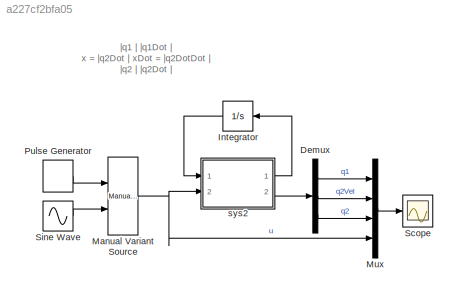
MODEL slx_a227cf2bfa05
KIND model
CONFIG AbsTol = auto
CONFIG EnableMultiTasking = off
CONFIG FixedStep = 0.01
CONFIG InitFcn = sys2Mec
CONFIG MaxStep = auto
CONFIG MinStep = auto
CONFIG RelTol = 1e-3
CONFIG SampleTimeConstraint = Unconstrained
CONFIG Solver = FixedStepAuto
CONFIG SolverName = FixedStepAuto
CONFIG StartTime = 0.0
CONFIG StopTime = 100.0
BLOCK [Demux] Demux
  DisplayOption = bar
  Outputs = 3
  Ports = [1, 3]
BLOCK [Integrator] Integrator
  InitialCondition = x0
  Ports = [1, 1]
BLOCK [Reference] Manual Variant Source  REF=simulink/Signal
Routing/Manual
Variant Source
  Ports = [2, 1]
  SourceBlock = simulink/Signal\nRouting/Manual\nVariant Source
  SourceProductBaseCode = SL
  SourceProductName = Simulink
  SourceType = ManualVariantSource
BLOCK [Mux] Mux
  DisplayOption = bar
  Ports = [4, 1]
BLOCK [DiscretePulseGenerator] Pulse Generator
  Period = 10
  Ports = [0, 1]
  PulseType = Time based
  PulseWidth = 10
BLOCK [Scope] Scope
  Floating = off
  NumInputPorts = 1
  Ports = [1]
  ScopeSpecificationString = Simulink.scopes.TimeScopeBlockCfg('CurrentConfiguration', extmgr.ConfigurationSet(extmgr.Configuration('Core','General UI',true),extmgr.Configuration('Core','Source UI',true),extmgr.Configuration('Sources','WiredSimulink',true),extmgr.Configuration('Visuals','Time Domain',true,'SerializedDisplays',{struct('MinYLimReal','-1.46163','MaxYLimReal','11.59088','YLabelReal','','MinYLimMag','0.00000','Max...<+1481ch>
BLOCK [Sin] Sine Wave
  Ports = [0, 1]
  SampleTime = 0
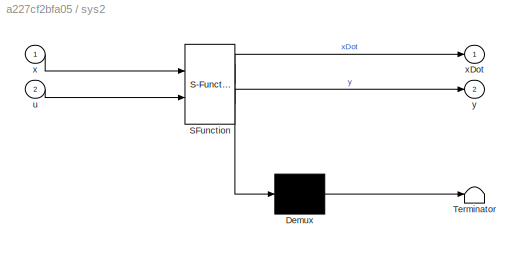
BLOCK [SubSystem] sys2
  ErrorFcn = Stateflow.Translate.translate
  PermitHierarchicalResolution = ExplicitOnly
  Ports = [2, 2]
  RequestExecContextInheritance = off
  SFBlockType = MATLAB Function
  TreatAsAtomicUnit = on
BLOCK [Demux] sys2/ Demux 
  Outputs = 1
  Ports = [1, 1]
BLOCK [S-Function] sys2/ SFunction 
  EnableBusSupport = on
  FunctionName = sf_sfun
  PortCounts = [2 3]
  Ports = [2, 3]
  SFcnIsStateOwnerBlock = off
  SFunctionDeploymentMode = off
  Tag = Stateflow S-Function sys2 2
BLOCK [Terminator] sys2/ Terminator 
BLOCK [Inport] sys2/u
  IconDisplay = Port number
  Port = 2
BLOCK [Inport] sys2/x
  IconDisplay = Port number
BLOCK [Outport] sys2/xDot
  IconDisplay = Port number
BLOCK [Outport] sys2/y
  IconDisplay = Port number
  Port = 2
ANNOTATION (root): |q1 | |q1Dot | x = |q2Dot | xDot = |q2DotDot | |q2 | |q2Dot |
LINE Demux:1 -> Mux:1
LINE Demux:2 -> Mux:2
LINE Demux:3 -> Mux:3
LINE Integrator:1 -> sys2:1
NET Manual Variant Source:1 -> Mux:4, sys2:2
LINE Mux:1 -> Scope:1
LINE Pulse Generator:1 -> Manual Variant Source:1
LINE Sine Wave:1 -> Manual Variant Source:2
LINE sys2:1 -> Integrator:1
LINE sys2:2 -> Demux:1
note: NET lines group one-source signal fan-out (src -> all destinations, sorted); 1:1 wires keep LINE
CHART sys2 states=1 transitions=1
  STATE_LABEL 'eML_blk_kernel()'
  STATE_LABEL 'SCRIPT:\nfunction [xDot,y] = sys2Diff(x,u)\n%SYS2DIF Summary of this function goes here\n%     |q1   |        |q1Dot   |\n% x = |q2Dot| xDot = |q2DotDot|\n%     |q2   |        |q2Dot   |\n\nD=1;\nM=1;\nK=1;\nxDot = zeros(3,1);\n\nxDot(1) = -K/M*x(1)+x(2);\nxDot(2) = -K/M*x(1) + u/M;\nxDot(3) = x(2);\ny=x;\nend\n'
